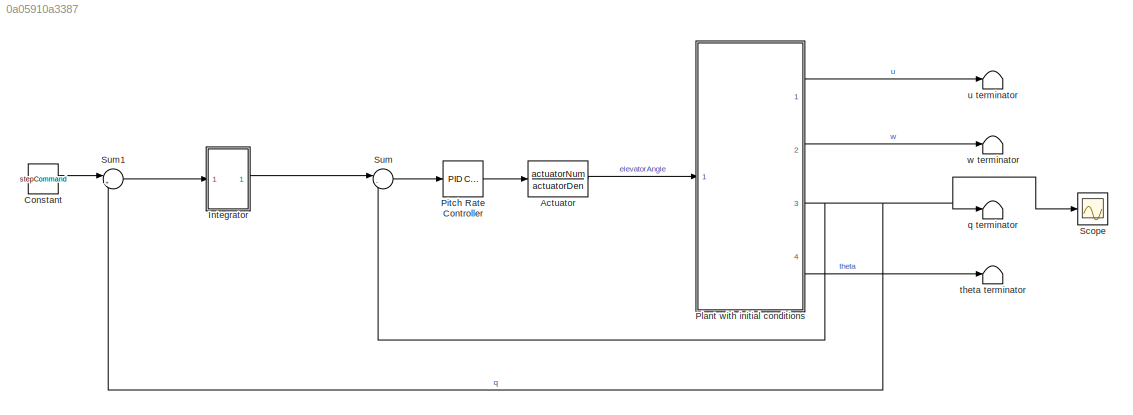
MODEL slx_0a05910a3387
KIND model
CONFIG AbsTol = auto
CONFIG EnableMultiTasking = off
CONFIG FixedStep = auto
CONFIG MaxStep = auto
CONFIG MinStep = auto
CONFIG RelTol = 1e-3
CONFIG SampleTimeConstraint = Unconstrained
CONFIG SolverName = ode15s
CONFIG StartTime = 0.0
CONFIG StopTime = 500
BLOCK [TransferFcn] Actuator
  Denominator = actuatorDen
  Numerator = actuatorNum
BLOCK [Constant] Constant
  Value = stepCommand
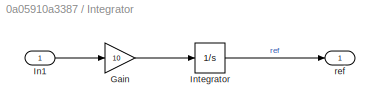
BLOCK [SubSystem] Integrator
  Ports = [1, 1]
  RequestExecContextInheritance = off
BLOCK [Gain] Integrator/Gain
  Gain = 10
BLOCK [Inport] Integrator/In1
BLOCK [Integrator] Integrator/Integrator
  Ports = [1, 1]
BLOCK [Outport] Integrator/ref
BLOCK [Reference] Pitch Rate Controller  REF=slpidlib/PID Controller
  Ports = [1, 1]
  SourceBlock = slpidlib/PID Controller
  SourceProductBaseCode = SL
  SourceType = PID 1dof
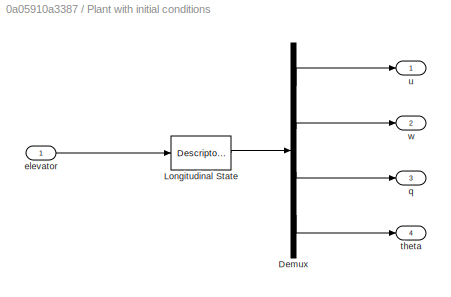
BLOCK [SubSystem] Plant with initial conditions
  Ports = [1, 4]
  RequestExecContextInheritance = off
BLOCK [Demux] Plant with initial conditions/Demux
  Ports = [1, 4]
BLOCK [DescriptorStateSpace] Plant with initial conditions/Longitudinal State 
  A = ALong
  B = BLong
  C = CLong
  ContinuousStateAttributes = 'LongitudinalSystem'
  D = DLong
  E = ELong
  InitialCondition = InitialConditions
  Ports = [1, 1]
BLOCK [Inport] Plant with initial conditions/elevator
BLOCK [Outport] Plant with initial conditions/q
  Port = 3
BLOCK [Outport] Plant with initial conditions/theta
  Port = 4
BLOCK [Outport] Plant with initial conditions/u
BLOCK [Outport] Plant with initial conditions/w
  Port = 2
BLOCK [Scope] Scope
  Floating = off
  NumInputPorts = 1
  Ports = [1]
  ScopeSpecificationString = Simulink.scopes.TimeScopeBlockCfg('CurrentConfiguration', extmgr.ConfigurationSet(extmgr.Configuration('Core','General UI',true),extmgr.Configuration('Core','Source UI',true),extmgr.Configuration('Sources','WiredSimulink',true,'DataLoggingSaveFormat','Array','DataLoggingLimitDataPoints',true,'DataLoggingDecimation','1'),extmgr.Configuration('Visuals','Time Domain',true,'SerializedDisplays',{struct...<+1626ch>
BLOCK [Sum] Sum
  Inputs = |-+
  Ports = [2, 1]
BLOCK [Sum] Sum1
  Inputs = |+-
  Ports = [2, 1]
BLOCK [Terminator] q terminator
BLOCK [Terminator] theta terminator
BLOCK [Terminator] u terminator
BLOCK [Terminator] w terminator
LINE Actuator:1 -> Plant with initial conditions:1
LINE Constant:1 -> Sum1:1
LINE Integrator/Gain:1 -> Integrator/Integrator:1
LINE Integrator/In1:1 -> Integrator/Gain:1
LINE Integrator/Integrator:1 -> Integrator/ref:1
LINE Integrator:1 -> Sum:1
LINE Pitch Rate Controller:1 -> Actuator:1
LINE Plant with initial conditions/Demux:1 -> Plant with initial conditions/u:1
LINE Plant with initial conditions/Demux:2 -> Plant with initial conditions/w:1
LINE Plant with initial conditions/Demux:3 -> Plant with initial conditions/q:1
LINE Plant with initial conditions/Demux:4 -> Plant with initial conditions/theta:1
LINE Plant with initial conditions/Longitudinal State :1 -> Plant with initial conditions/Demux:1
LINE Plant with initial conditions/elevator:1 -> Plant with initial conditions/Longitudinal State :1
LINE Plant with initial conditions:1 -> u terminator:1
LINE Plant with initial conditions:2 -> w terminator:1
NET Plant with initial conditions:3 -> Scope:1, Sum1:2, Sum:2, q terminator:1
LINE Plant with initial conditions:4 -> theta terminator:1
LINE Sum1:1 -> Integrator:1
LINE Sum:1 -> Pitch Rate Controller:1
note: NET lines group one-source signal fan-out (src -> all destinations, sorted); 1:1 wires keep LINE
